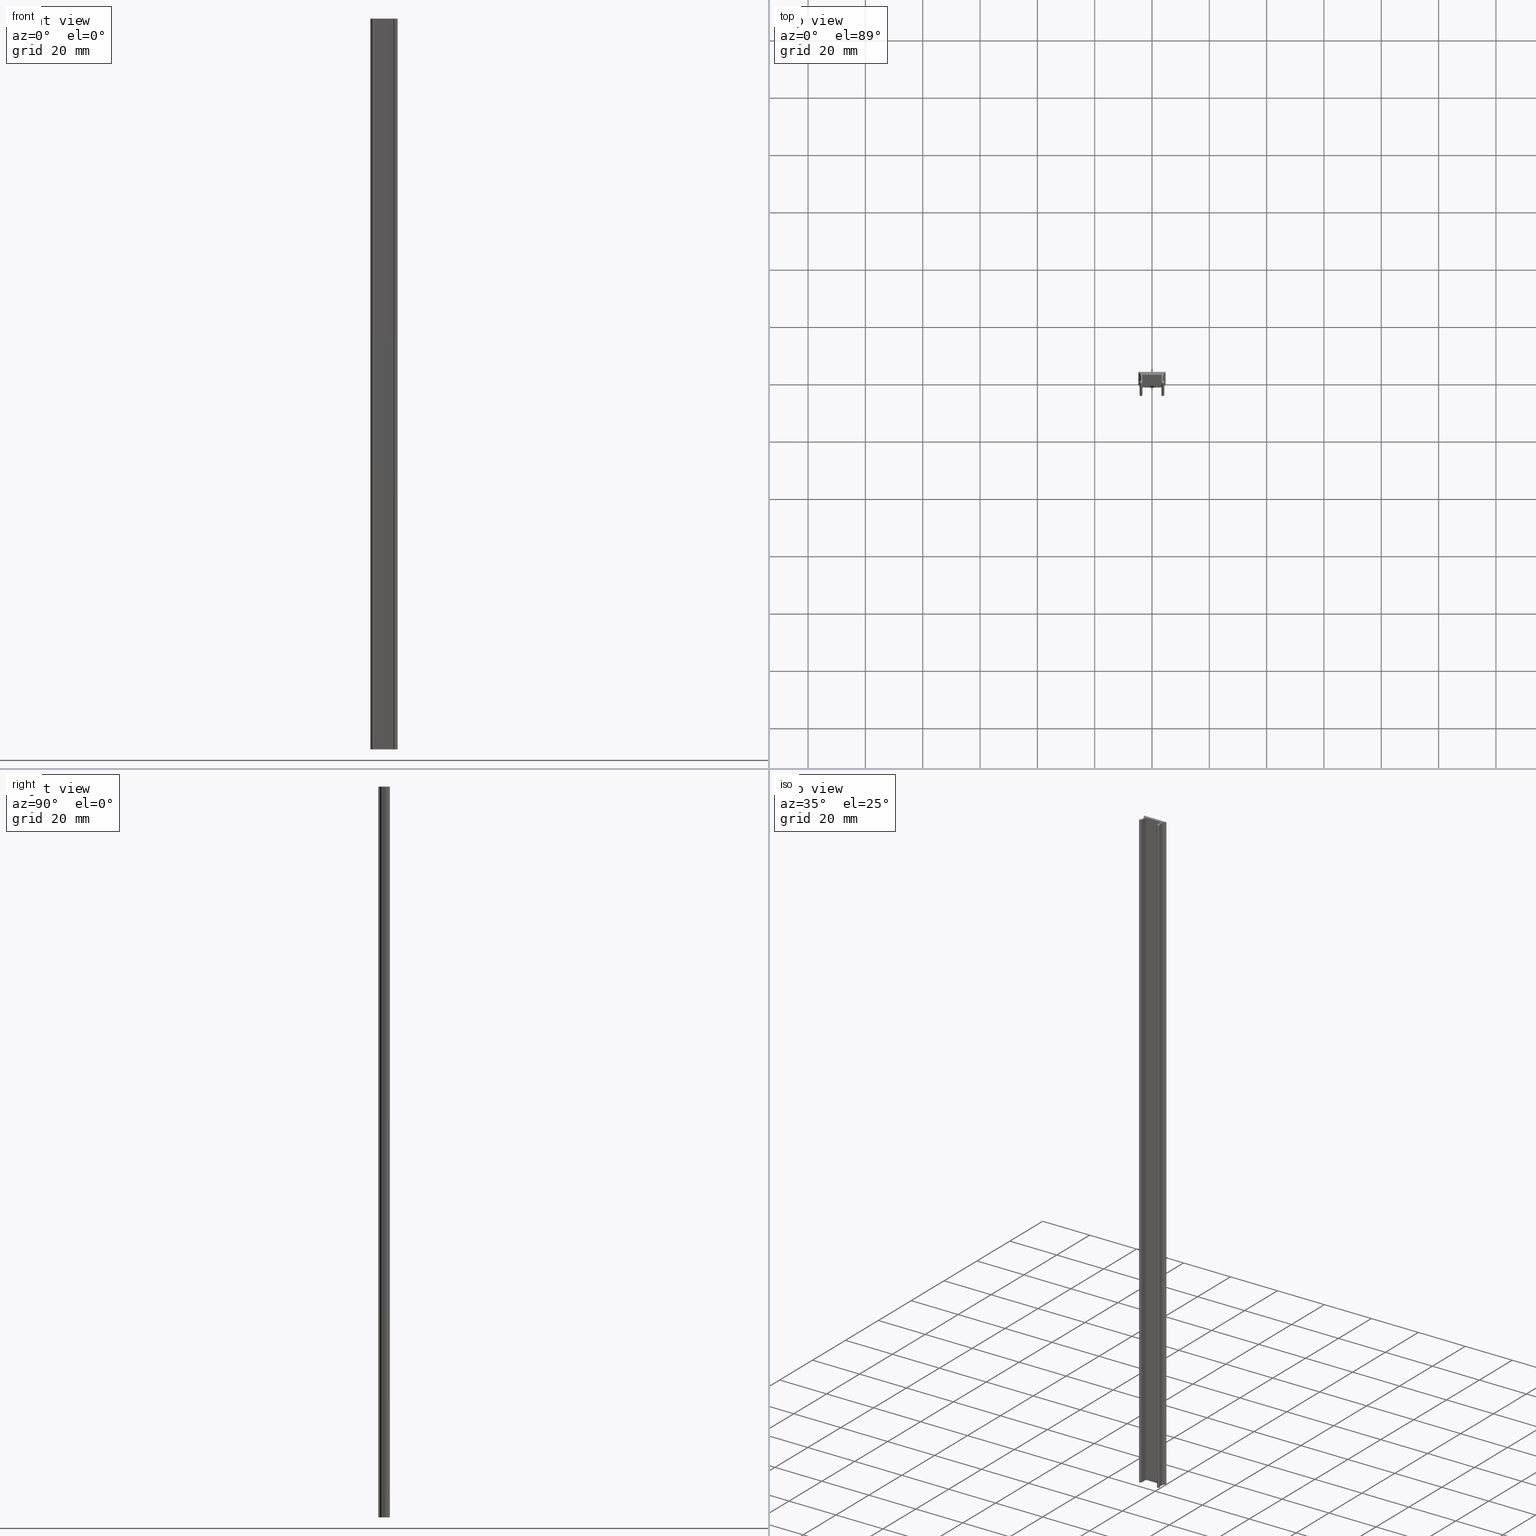
[diagram: canonical four-view strip — front | top / right | iso, engineering-drawing reading convention]
A machine part, canonical four-view strip (front | top / right | iso — engineering-drawing reading convention). The complete STEP part file that produces these views, byte-faithful:
ISO-10303-21;
HEADER;
/* Generated by software containing ST-Developer
 * from STEP Tools, Inc. (www.steptools.com) 
 */

FILE_DESCRIPTION(
/* description */ ('Translator using VaultInventorServer'),
/* implementation_level */ '2;1');

FILE_NAME(
/* name */ 
'C:\\DIERRE19\\Designs\\DIERRE\\AA\\PR\\0015000_0020000\\DAAPR0017599_
A.stp',
/* time_stamp */ '2022-03-18T14:28:15+01:00',
/* author */ ('Alex De Marchi'),
/* organization */ (''),
/* preprocessor_version */ 'ST-DEVELOPER v17.2',
/* originating_system */ 'Autodesk Inventor 2019',
/* authorisation */ '');

FILE_SCHEMA (('AUTOMOTIVE_DESIGN { 1 0 10303 214 3 1 1 }'));
ENDSEC;

DATA;
#10=MECHANICAL_DESIGN_GEOMETRIC_PRESENTATION_REPRESENTATION('',(#13),#535);
#11=SHAPE_REPRESENTATION_RELATIONSHIP('SRR','None',#542,#12);
#12=ADVANCED_BREP_SHAPE_REPRESENTATION('',(#14),#534);
#13=STYLED_ITEM('',(#551),#14);
#14=MANIFOLD_SOLID_BREP('Solido1',#301);
#15=CIRCLE('',#324,0.500000000027362);
#16=CIRCLE('',#325,0.500000000027362);
#17=CIRCLE('',#327,0.100000000248674);
#18=CIRCLE('',#328,0.100000000248674);
#19=CIRCLE('',#331,1.68999999973122);
#20=CIRCLE('',#332,1.68999999973122);
#21=CIRCLE('',#334,0.100000000248674);
#22=CIRCLE('',#335,0.100000000248674);
#23=CIRCLE('',#338,0.500000000027362);
#24=CIRCLE('',#339,0.500000000027362);
#25=CIRCLE('',#341,0.100000000248674);
#26=CIRCLE('',#342,0.100000000248674);
#27=CIRCLE('',#345,1.68999999973122);
#28=CIRCLE('',#346,1.68999999973122);
#29=CIRCLE('',#348,0.100000000248674);
#30=CIRCLE('',#349,0.100000000248674);
#31=CYLINDRICAL_SURFACE('',#323,0.500000000027362);
#32=CYLINDRICAL_SURFACE('',#326,0.100000000248674);
#33=CYLINDRICAL_SURFACE('',#330,1.68999999973122);
#34=CYLINDRICAL_SURFACE('',#333,0.100000000248674);
#35=CYLINDRICAL_SURFACE('',#337,0.500000000027362);
#36=CYLINDRICAL_SURFACE('',#340,0.100000000248674);
#37=CYLINDRICAL_SURFACE('',#344,1.68999999973122);
#38=CYLINDRICAL_SURFACE('',#347,0.100000000248674);
#39=FACE_OUTER_BOUND('',#55,.T.);
#40=FACE_OUTER_BOUND('',#56,.T.);
#41=FACE_OUTER_BOUND('',#57,.T.);
#42=FACE_OUTER_BOUND('',#58,.T.);
#43=FACE_OUTER_BOUND('',#59,.T.);
#44=FACE_OUTER_BOUND('',#60,.T.);
#45=FACE_OUTER_BOUND('',#61,.T.);
#46=FACE_OUTER_BOUND('',#62,.T.);
#47=FACE_OUTER_BOUND('',#63,.T.);
#48=FACE_OUTER_BOUND('',#64,.T.);
#49=FACE_OUTER_BOUND('',#65,.T.);
#50=FACE_OUTER_BOUND('',#66,.T.);
#51=FACE_OUTER_BOUND('',#67,.T.);
#52=FACE_OUTER_BOUND('',#68,.T.);
#53=FACE_OUTER_BOUND('',#69,.T.);
#54=FACE_OUTER_BOUND('',#70,.T.);
#55=EDGE_LOOP('',(#193,#194,#195,#196));
#56=EDGE_LOOP('',(#197,#198,#199,#200));
#57=EDGE_LOOP('',(#201,#202,#203,#204));
#58=EDGE_LOOP('',(#205,#206,#207,#208));
#59=EDGE_LOOP('',(#209,#210,#211,#212));
#60=EDGE_LOOP('',(#213,#214,#215,#216));
#61=EDGE_LOOP('',(#217,#218,#219,#220));
#62=EDGE_LOOP('',(#221,#222,#223,#224));
#63=EDGE_LOOP('',(#225,#226,#227,#228));
#64=EDGE_LOOP('',(#229,#230,#231,#232));
#65=EDGE_LOOP('',(#233,#234,#235,#236));
#66=EDGE_LOOP('',(#237,#238,#239,#240));
#67=EDGE_LOOP('',(#241,#242,#243,#244));
#68=EDGE_LOOP('',(#245,#246,#247,#248,#249,#250,#251,#252,#253,#254,#255,
#256,#257,#258));
#69=EDGE_LOOP('',(#259,#260,#261,#262));
#70=EDGE_LOOP('',(#263,#264,#265,#266,#267,#268,#269,#270,#271,#272,#273,
#274,#275,#276));
#71=LINE('',#449,#97);
#72=LINE('',#451,#98);
#73=LINE('',#453,#99);
#74=LINE('',#454,#100);
#75=LINE('',#457,#101);
#76=LINE('',#459,#102);
#77=LINE('',#460,#103);
#78=LINE('',#466,#104);
#79=LINE('',#472,#105);
#80=LINE('',#475,#106);
#81=LINE('',#477,#107);
#82=LINE('',#478,#108);
#83=LINE('',#484,#109);
#84=LINE('',#490,#110);
#85=LINE('',#493,#111);
#86=LINE('',#495,#112);
#87=LINE('',#496,#113);
#88=LINE('',#501,#114);
#89=LINE('',#507,#115);
#90=LINE('',#511,#116);
#91=LINE('',#513,#117);
#92=LINE('',#514,#118);
#93=LINE('',#519,#119);
#94=LINE('',#525,#120);
#95=LINE('',#528,#121);
#96=LINE('',#530,#122);
#97=VECTOR('',#357,10.);
#98=VECTOR('',#358,10.);
#99=VECTOR('',#359,10.);
#100=VECTOR('',#360,10.);
#101=VECTOR('',#363,10.);
#102=VECTOR('',#364,10.);
#103=VECTOR('',#365,10.);
#104=VECTOR('',#372,10.);
#105=VECTOR('',#379,10.);
#106=VECTOR('',#382,10.);
#107=VECTOR('',#383,10.);
#108=VECTOR('',#384,10.);
#109=VECTOR('',#391,10.);
#110=VECTOR('',#398,10.);
#111=VECTOR('',#401,10.);
#112=VECTOR('',#402,10.);
#113=VECTOR('',#403,10.);
#114=VECTOR('',#408,10.);
#115=VECTOR('',#415,10.);
#116=VECTOR('',#420,10.);
#117=VECTOR('',#421,10.);
#118=VECTOR('',#422,10.);
#119=VECTOR('',#427,10.);
#120=VECTOR('',#434,10.);
#121=VECTOR('',#439,10.);
#122=VECTOR('',#442,10.);
#123=VERTEX_POINT('',#447);
#124=VERTEX_POINT('',#448);
#125=VERTEX_POINT('',#450);
#126=VERTEX_POINT('',#452);
#127=VERTEX_POINT('',#456);
#128=VERTEX_POINT('',#458);
#129=VERTEX_POINT('',#462);
#130=VERTEX_POINT('',#464);
#131=VERTEX_POINT('',#468);
#132=VERTEX_POINT('',#470);
#133=VERTEX_POINT('',#474);
#134=VERTEX_POINT('',#476);
#135=VERTEX_POINT('',#480);
#136=VERTEX_POINT('',#482);
#137=VERTEX_POINT('',#486);
#138=VERTEX_POINT('',#488);
#139=VERTEX_POINT('',#492);
#140=VERTEX_POINT('',#494);
#141=VERTEX_POINT('',#498);
#142=VERTEX_POINT('',#500);
#143=VERTEX_POINT('',#504);
#144=VERTEX_POINT('',#506);
#145=VERTEX_POINT('',#510);
#146=VERTEX_POINT('',#512);
#147=VERTEX_POINT('',#516);
#148=VERTEX_POINT('',#518);
#149=VERTEX_POINT('',#522);
#150=VERTEX_POINT('',#524);
#151=EDGE_CURVE('',#123,#124,#71,.T.);
#152=EDGE_CURVE('',#125,#123,#72,.T.);
#153=EDGE_CURVE('',#126,#125,#73,.T.);
#154=EDGE_CURVE('',#126,#124,#74,.T.);
#155=EDGE_CURVE('',#124,#127,#75,.T.);
#156=EDGE_CURVE('',#128,#126,#76,.T.);
#157=EDGE_CURVE('',#128,#127,#77,.T.);
#158=EDGE_CURVE('',#127,#129,#15,.T.);
#159=EDGE_CURVE('',#130,#128,#16,.T.);
#160=EDGE_CURVE('',#130,#129,#78,.T.);
#161=EDGE_CURVE('',#129,#131,#17,.T.);
#162=EDGE_CURVE('',#132,#130,#18,.T.);
#163=EDGE_CURVE('',#132,#131,#79,.T.);
#164=EDGE_CURVE('',#131,#133,#80,.T.);
#165=EDGE_CURVE('',#134,#132,#81,.T.);
#166=EDGE_CURVE('',#134,#133,#82,.T.);
#167=EDGE_CURVE('',#133,#135,#19,.T.);
#168=EDGE_CURVE('',#136,#134,#20,.T.);
#169=EDGE_CURVE('',#136,#135,#83,.T.);
#170=EDGE_CURVE('',#135,#137,#21,.T.);
#171=EDGE_CURVE('',#138,#136,#22,.T.);
#172=EDGE_CURVE('',#137,#138,#84,.T.);
#173=EDGE_CURVE('',#139,#123,#85,.T.);
#174=EDGE_CURVE('',#140,#139,#86,.T.);
#175=EDGE_CURVE('',#125,#140,#87,.T.);
#176=EDGE_CURVE('',#141,#139,#23,.T.);
#177=EDGE_CURVE('',#142,#141,#88,.T.);
#178=EDGE_CURVE('',#140,#142,#24,.T.);
#179=EDGE_CURVE('',#143,#141,#25,.T.);
#180=EDGE_CURVE('',#144,#143,#89,.T.);
#181=EDGE_CURVE('',#142,#144,#26,.T.);
#182=EDGE_CURVE('',#145,#143,#90,.T.);
#183=EDGE_CURVE('',#146,#145,#91,.T.);
#184=EDGE_CURVE('',#144,#146,#92,.T.);
#185=EDGE_CURVE('',#147,#145,#27,.T.);
#186=EDGE_CURVE('',#148,#147,#93,.T.);
#187=EDGE_CURVE('',#146,#148,#28,.T.);
#188=EDGE_CURVE('',#149,#147,#29,.T.);
#189=EDGE_CURVE('',#149,#150,#94,.T.);
#190=EDGE_CURVE('',#148,#150,#30,.T.);
#191=EDGE_CURVE('',#150,#138,#95,.T.);
#192=EDGE_CURVE('',#149,#137,#96,.T.);
#193=ORIENTED_EDGE('',*,*,#151,.F.);
#194=ORIENTED_EDGE('',*,*,#152,.F.);
#195=ORIENTED_EDGE('',*,*,#153,.F.);
#196=ORIENTED_EDGE('',*,*,#154,.T.);
#197=ORIENTED_EDGE('',*,*,#155,.F.);
#198=ORIENTED_EDGE('',*,*,#154,.F.);
#199=ORIENTED_EDGE('',*,*,#156,.F.);
#200=ORIENTED_EDGE('',*,*,#157,.T.);
#201=ORIENTED_EDGE('',*,*,#158,.F.);
#202=ORIENTED_EDGE('',*,*,#157,.F.);
#203=ORIENTED_EDGE('',*,*,#159,.F.);
#204=ORIENTED_EDGE('',*,*,#160,.T.);
#205=ORIENTED_EDGE('',*,*,#161,.F.);
#206=ORIENTED_EDGE('',*,*,#160,.F.);
#207=ORIENTED_EDGE('',*,*,#162,.F.);
#208=ORIENTED_EDGE('',*,*,#163,.T.);
#209=ORIENTED_EDGE('',*,*,#164,.F.);
#210=ORIENTED_EDGE('',*,*,#163,.F.);
#211=ORIENTED_EDGE('',*,*,#165,.F.);
#212=ORIENTED_EDGE('',*,*,#166,.T.);
#213=ORIENTED_EDGE('',*,*,#167,.F.);
#214=ORIENTED_EDGE('',*,*,#166,.F.);
#215=ORIENTED_EDGE('',*,*,#168,.F.);
#216=ORIENTED_EDGE('',*,*,#169,.T.);
#217=ORIENTED_EDGE('',*,*,#170,.F.);
#218=ORIENTED_EDGE('',*,*,#169,.F.);
#219=ORIENTED_EDGE('',*,*,#171,.F.);
#220=ORIENTED_EDGE('',*,*,#172,.F.);
#221=ORIENTED_EDGE('',*,*,#173,.F.);
#222=ORIENTED_EDGE('',*,*,#174,.F.);
#223=ORIENTED_EDGE('',*,*,#175,.F.);
#224=ORIENTED_EDGE('',*,*,#152,.T.);
#225=ORIENTED_EDGE('',*,*,#176,.F.);
#226=ORIENTED_EDGE('',*,*,#177,.F.);
#227=ORIENTED_EDGE('',*,*,#178,.F.);
#228=ORIENTED_EDGE('',*,*,#174,.T.);
#229=ORIENTED_EDGE('',*,*,#179,.F.);
#230=ORIENTED_EDGE('',*,*,#180,.F.);
#231=ORIENTED_EDGE('',*,*,#181,.F.);
#232=ORIENTED_EDGE('',*,*,#177,.T.);
#233=ORIENTED_EDGE('',*,*,#182,.F.);
#234=ORIENTED_EDGE('',*,*,#183,.F.);
#235=ORIENTED_EDGE('',*,*,#184,.F.);
#236=ORIENTED_EDGE('',*,*,#180,.T.);
#237=ORIENTED_EDGE('',*,*,#185,.F.);
#238=ORIENTED_EDGE('',*,*,#186,.F.);
#239=ORIENTED_EDGE('',*,*,#187,.F.);
#240=ORIENTED_EDGE('',*,*,#183,.T.);
#241=ORIENTED_EDGE('',*,*,#188,.F.);
#242=ORIENTED_EDGE('',*,*,#189,.T.);
#243=ORIENTED_EDGE('',*,*,#190,.F.);
#244=ORIENTED_EDGE('',*,*,#186,.T.);
#245=ORIENTED_EDGE('',*,*,#171,.T.);
#246=ORIENTED_EDGE('',*,*,#168,.T.);
#247=ORIENTED_EDGE('',*,*,#165,.T.);
#248=ORIENTED_EDGE('',*,*,#162,.T.);
#249=ORIENTED_EDGE('',*,*,#159,.T.);
#250=ORIENTED_EDGE('',*,*,#156,.T.);
#251=ORIENTED_EDGE('',*,*,#153,.T.);
#252=ORIENTED_EDGE('',*,*,#175,.T.);
#253=ORIENTED_EDGE('',*,*,#178,.T.);
#254=ORIENTED_EDGE('',*,*,#181,.T.);
#255=ORIENTED_EDGE('',*,*,#184,.T.);
#256=ORIENTED_EDGE('',*,*,#187,.T.);
#257=ORIENTED_EDGE('',*,*,#190,.T.);
#258=ORIENTED_EDGE('',*,*,#191,.T.);
#259=ORIENTED_EDGE('',*,*,#172,.T.);
#260=ORIENTED_EDGE('',*,*,#191,.F.);
#261=ORIENTED_EDGE('',*,*,#189,.F.);
#262=ORIENTED_EDGE('',*,*,#192,.T.);
#263=ORIENTED_EDGE('',*,*,#170,.T.);
#264=ORIENTED_EDGE('',*,*,#192,.F.);
#265=ORIENTED_EDGE('',*,*,#188,.T.);
#266=ORIENTED_EDGE('',*,*,#185,.T.);
#267=ORIENTED_EDGE('',*,*,#182,.T.);
#268=ORIENTED_EDGE('',*,*,#179,.T.);
#269=ORIENTED_EDGE('',*,*,#176,.T.);
#270=ORIENTED_EDGE('',*,*,#173,.T.);
#271=ORIENTED_EDGE('',*,*,#151,.T.);
#272=ORIENTED_EDGE('',*,*,#155,.T.);
#273=ORIENTED_EDGE('',*,*,#158,.T.);
#274=ORIENTED_EDGE('',*,*,#161,.T.);
#275=ORIENTED_EDGE('',*,*,#164,.T.);
#276=ORIENTED_EDGE('',*,*,#167,.T.);
#277=PLANE('',#321);
#278=PLANE('',#322);
#279=PLANE('',#329);
#280=PLANE('',#336);
#281=PLANE('',#343);
#282=PLANE('',#350);
#283=PLANE('',#351);
#284=PLANE('',#352);
#285=ADVANCED_FACE('',(#39),#277,.T.);
#286=ADVANCED_FACE('',(#40),#278,.T.);
#287=ADVANCED_FACE('',(#41),#31,.T.);
#288=ADVANCED_FACE('',(#42),#32,.F.);
#289=ADVANCED_FACE('',(#43),#279,.T.);
#290=ADVANCED_FACE('',(#44),#33,.F.);
#291=ADVANCED_FACE('',(#45),#34,.T.);
#292=ADVANCED_FACE('',(#46),#280,.T.);
#293=ADVANCED_FACE('',(#47),#35,.T.);
#294=ADVANCED_FACE('',(#48),#36,.F.);
#295=ADVANCED_FACE('',(#49),#281,.T.);
#296=ADVANCED_FACE('',(#50),#37,.F.);
#297=ADVANCED_FACE('',(#51),#38,.T.);
#298=ADVANCED_FACE('',(#52),#282,.F.);
#299=ADVANCED_FACE('',(#53),#283,.T.);
#300=ADVANCED_FACE('',(#54),#284,.T.);
#301=CLOSED_SHELL('',(#285,#286,#287,#288,#289,#290,#291,#292,#293,#294,
#295,#296,#297,#298,#299,#300));
#302=DERIVED_UNIT_ELEMENT(#304,1.);
#303=DERIVED_UNIT_ELEMENT(#537,3.);
#304=(
MASS_UNIT()
NAMED_UNIT(*)
SI_UNIT($,.GRAM.)
);
#305=DERIVED_UNIT((#302,#303));
#306=MEASURE_REPRESENTATION_ITEM('density measure',
POSITIVE_RATIO_MEASURE(2.7),#305);
#307=PROPERTY_DEFINITION_REPRESENTATION(#312,#309);
#308=PROPERTY_DEFINITION_REPRESENTATION(#313,#310);
#309=REPRESENTATION('material name',(#311),#534);
#310=REPRESENTATION('density',(#306),#534);
#311=DESCRIPTIVE_REPRESENTATION_ITEM('Alluminio - 6060',
'Alluminio - 6060');
#312=PROPERTY_DEFINITION('material property','material name',#544);
#313=PROPERTY_DEFINITION('material property','density of part',#544);
#314=DATE_TIME_ROLE('creation_date');
#315=APPLIED_DATE_AND_TIME_ASSIGNMENT(#316,#314,(#544));
#316=DATE_AND_TIME(#317,#318);
#317=CALENDAR_DATE(2015,15,10);
#318=LOCAL_TIME(10,5,35.,#319);
#319=COORDINATED_UNIVERSAL_TIME_OFFSET(0,0,.BEHIND.);
#320=AXIS2_PLACEMENT_3D('placement',#445,#353,#354);
#321=AXIS2_PLACEMENT_3D('',#446,#355,#356);
#322=AXIS2_PLACEMENT_3D('',#455,#361,#362);
#323=AXIS2_PLACEMENT_3D('',#461,#366,#367);
#324=AXIS2_PLACEMENT_3D('',#463,#368,#369);
#325=AXIS2_PLACEMENT_3D('',#465,#370,#371);
#326=AXIS2_PLACEMENT_3D('',#467,#373,#374);
#327=AXIS2_PLACEMENT_3D('',#469,#375,#376);
#328=AXIS2_PLACEMENT_3D('',#471,#377,#378);
#329=AXIS2_PLACEMENT_3D('',#473,#380,#381);
#330=AXIS2_PLACEMENT_3D('',#479,#385,#386);
#331=AXIS2_PLACEMENT_3D('',#481,#387,#388);
#332=AXIS2_PLACEMENT_3D('',#483,#389,#390);
#333=AXIS2_PLACEMENT_3D('',#485,#392,#393);
#334=AXIS2_PLACEMENT_3D('',#487,#394,#395);
#335=AXIS2_PLACEMENT_3D('',#489,#396,#397);
#336=AXIS2_PLACEMENT_3D('',#491,#399,#400);
#337=AXIS2_PLACEMENT_3D('',#497,#404,#405);
#338=AXIS2_PLACEMENT_3D('',#499,#406,#407);
#339=AXIS2_PLACEMENT_3D('',#502,#409,#410);
#340=AXIS2_PLACEMENT_3D('',#503,#411,#412);
#341=AXIS2_PLACEMENT_3D('',#505,#413,#414);
#342=AXIS2_PLACEMENT_3D('',#508,#416,#417);
#343=AXIS2_PLACEMENT_3D('',#509,#418,#419);
#344=AXIS2_PLACEMENT_3D('',#515,#423,#424);
#345=AXIS2_PLACEMENT_3D('',#517,#425,#426);
#346=AXIS2_PLACEMENT_3D('',#520,#428,#429);
#347=AXIS2_PLACEMENT_3D('',#521,#430,#431);
#348=AXIS2_PLACEMENT_3D('',#523,#432,#433);
#349=AXIS2_PLACEMENT_3D('',#526,#435,#436);
#350=AXIS2_PLACEMENT_3D('',#527,#437,#438);
#351=AXIS2_PLACEMENT_3D('',#529,#440,#441);
#352=AXIS2_PLACEMENT_3D('',#531,#443,#444);
#353=DIRECTION('axis',(0.,0.,1.));
#354=DIRECTION('refdir',(1.,0.,0.));
#355=DIRECTION('center_axis',(0.,-1.,0.));
#356=DIRECTION('ref_axis',(0.,0.,-1.));
#357=DIRECTION('',(1.,0.,0.));
#358=DIRECTION('',(0.,0.,1.));
#359=DIRECTION('',(-1.,0.,0.));
#360=DIRECTION('',(0.,0.,1.));
#361=DIRECTION('center_axis',(-1.,0.,0.));
#362=DIRECTION('ref_axis',(0.,0.,1.));
#363=DIRECTION('',(0.,-1.,0.));
#364=DIRECTION('',(0.,1.,0.));
#365=DIRECTION('',(0.,0.,1.));
#366=DIRECTION('center_axis',(0.,0.,1.));
#367=DIRECTION('ref_axis',(0.645497224267798,-0.763762615910578,0.));
#368=DIRECTION('center_axis',(0.,0.,1.));
#369=DIRECTION('ref_axis',(-1.,4.44089209825763E-15,0.));
#370=DIRECTION('center_axis',(0.,0.,-1.));
#371=DIRECTION('ref_axis',(-1.,4.44089209825763E-15,0.));
#372=DIRECTION('',(0.,0.,1.));
#373=DIRECTION('center_axis',(0.,0.,1.));
#374=DIRECTION('ref_axis',(1.,0.,0.));
#375=DIRECTION('center_axis',(0.,0.,-1.));
#376=DIRECTION('ref_axis',(1.,0.,0.));
#377=DIRECTION('center_axis',(0.,0.,1.));
#378=DIRECTION('ref_axis',(1.,0.,0.));
#379=DIRECTION('',(0.,0.,1.));
#380=DIRECTION('center_axis',(1.,0.,0.));
#381=DIRECTION('ref_axis',(0.,0.,-1.));
#382=DIRECTION('',(0.,1.,0.));
#383=DIRECTION('',(0.,-1.,0.));
#384=DIRECTION('',(0.,0.,1.));
#385=DIRECTION('center_axis',(0.,0.,1.));
#386=DIRECTION('ref_axis',(0.459325247268127,-0.888268156145471,0.));
#387=DIRECTION('center_axis',(0.,0.,-1.));
#388=DIRECTION('ref_axis',(0.459325247268127,-0.888268156145471,0.));
#389=DIRECTION('center_axis',(0.,0.,1.));
#390=DIRECTION('ref_axis',(0.459325247268127,-0.888268156145471,0.));
#391=DIRECTION('',(0.,0.,1.));
#392=DIRECTION('center_axis',(0.,0.,1.));
#393=DIRECTION('ref_axis',(0.459325247268123,-0.888268156145473,0.));
#394=DIRECTION('center_axis',(0.,0.,1.));
#395=DIRECTION('ref_axis',(0.459325247268123,-0.888268156145473,0.));
#396=DIRECTION('center_axis',(0.,0.,-1.));
#397=DIRECTION('ref_axis',(0.459325247268123,-0.888268156145473,0.));
#398=DIRECTION('',(0.,0.,-1.));
#399=DIRECTION('center_axis',(1.,0.,0.));
#400=DIRECTION('ref_axis',(0.,0.,-1.));
#401=DIRECTION('',(0.,1.,0.));
#402=DIRECTION('',(0.,0.,1.));
#403=DIRECTION('',(0.,-1.,0.));
#404=DIRECTION('center_axis',(0.,0.,1.));
#405=DIRECTION('ref_axis',(-0.645497224267796,-0.763762615910579,0.));
#406=DIRECTION('center_axis',(0.,0.,1.));
#407=DIRECTION('ref_axis',(-0.166666666925146,0.986013297139579,0.));
#408=DIRECTION('',(0.,0.,1.));
#409=DIRECTION('center_axis',(0.,0.,-1.));
#410=DIRECTION('ref_axis',(-0.166666666925146,0.986013297139579,0.));
#411=DIRECTION('center_axis',(0.,0.,1.));
#412=DIRECTION('ref_axis',(-0.166666666925153,0.986013297139577,0.));
#413=DIRECTION('center_axis',(0.,0.,-1.));
#414=DIRECTION('ref_axis',(-0.166666666925153,0.986013297139577,0.));
#415=DIRECTION('',(0.,0.,1.));
#416=DIRECTION('center_axis',(0.,0.,1.));
#417=DIRECTION('ref_axis',(-0.166666666925153,0.986013297139577,0.));
#418=DIRECTION('center_axis',(-1.,0.,0.));
#419=DIRECTION('ref_axis',(0.,0.,1.));
#420=DIRECTION('',(0.,-1.,0.));
#421=DIRECTION('',(0.,0.,1.));
#422=DIRECTION('',(0.,1.,0.));
#423=DIRECTION('center_axis',(0.,0.,1.));
#424=DIRECTION('ref_axis',(-1.,0.,0.));
#425=DIRECTION('center_axis',(0.,0.,-1.));
#426=DIRECTION('ref_axis',(-1.,0.,0.));
#427=DIRECTION('',(0.,0.,1.));
#428=DIRECTION('center_axis',(0.,0.,1.));
#429=DIRECTION('ref_axis',(-1.,0.,0.));
#430=DIRECTION('center_axis',(0.,0.,1.));
#431=DIRECTION('ref_axis',(5.55111510932133E-15,1.,0.));
#432=DIRECTION('center_axis',(0.,0.,1.));
#433=DIRECTION('ref_axis',(5.55111510932133E-15,1.,0.));
#434=DIRECTION('',(0.,0.,-1.));
#435=DIRECTION('center_axis',(0.,0.,-1.));
#436=DIRECTION('ref_axis',(5.55111510932133E-15,1.,0.));
#437=DIRECTION('center_axis',(0.,0.,1.));
#438=DIRECTION('ref_axis',(1.,0.,0.));
#439=DIRECTION('',(1.,4.28626379701574E-16,0.));
#440=DIRECTION('center_axis',(-4.28626379701574E-16,1.,0.));
#441=DIRECTION('ref_axis',(-1.,-4.28626379701574E-16,0.));
#442=DIRECTION('',(1.,4.28626379701574E-16,0.));
#443=DIRECTION('center_axis',(0.,0.,1.));
#444=DIRECTION('ref_axis',(1.,0.,0.));
#445=CARTESIAN_POINT('',(0.,0.,0.));
#446=CARTESIAN_POINT('Origin',(3.30000000000877,-0.999999999561894,0.));
#447=CARTESIAN_POINT('',(-3.30000000000876,-0.999999999561894,255.));
#448=CARTESIAN_POINT('',(3.30000000000877,-0.999999999561894,255.));
#449=CARTESIAN_POINT('',(1.65000000000439,-0.999999999561894,255.));
#450=CARTESIAN_POINT('',(-3.30000000000876,-0.999999999561894,0.));
#451=CARTESIAN_POINT('',(-3.30000000000876,-0.999999999561894,0.));
#452=CARTESIAN_POINT('',(3.30000000000877,-0.999999999561894,0.));
#453=CARTESIAN_POINT('',(1.65000000000439,-0.999999999561894,0.));
#454=CARTESIAN_POINT('',(3.30000000000877,-0.999999999561894,0.));
#455=CARTESIAN_POINT('Origin',(3.30000000000877,-3.49999999997263,0.));
#456=CARTESIAN_POINT('',(3.30000000000877,-3.49999999997263,255.));
#457=CARTESIAN_POINT('',(3.30000000000877,-2.99999999998631,255.));
#458=CARTESIAN_POINT('',(3.30000000000877,-3.49999999997263,0.));
#459=CARTESIAN_POINT('',(3.30000000000877,-2.99999999998631,0.));
#460=CARTESIAN_POINT('',(3.30000000000877,-3.49999999997263,0.));
#461=CARTESIAN_POINT('Origin',(3.80000000003613,-3.49999999997263,0.));
#462=CARTESIAN_POINT('',(3.88333333350326,-3.00699335137586,255.));
#463=CARTESIAN_POINT('Origin',(3.80000000003613,-3.49999999997263,255.));
#464=CARTESIAN_POINT('',(3.88333333350326,-3.00699335137586,0.));
#465=CARTESIAN_POINT('Origin',(3.80000000003613,-3.49999999997263,0.));
#466=CARTESIAN_POINT('',(3.88333333350326,-3.00699335137586,0.));
#467=CARTESIAN_POINT('Origin',(3.90000000023722,-2.90839202141671,0.));
#468=CARTESIAN_POINT('',(3.79999999998854,-2.90839202141671,255.));
#469=CARTESIAN_POINT('Origin',(3.90000000023722,-2.90839202141671,255.));
#470=CARTESIAN_POINT('',(3.79999999998854,-2.90839202141671,0.));
#471=CARTESIAN_POINT('Origin',(3.90000000023722,-2.90839202141671,0.));
#472=CARTESIAN_POINT('',(3.79999999998854,-2.90839202141671,0.));
#473=CARTESIAN_POINT('Origin',(3.79999999998854,-1.68999999973122,0.));
#474=CARTESIAN_POINT('',(3.79999999998854,-1.68999999973122,255.));
#475=CARTESIAN_POINT('',(3.79999999998854,-2.09499999986561,255.));
#476=CARTESIAN_POINT('',(3.79999999998854,-1.68999999973122,0.));
#477=CARTESIAN_POINT('',(3.79999999998854,-2.09499999986561,0.));
#478=CARTESIAN_POINT('',(3.79999999998854,-1.68999999973122,0.));
#479=CARTESIAN_POINT('Origin',(5.48999999971976,-1.68999999973122,0.));
#480=CARTESIAN_POINT('',(4.71374033196008,-0.18882681608412,255.));
#481=CARTESIAN_POINT('Origin',(5.48999999971976,-1.68999999973122,255.));
#482=CARTESIAN_POINT('',(4.71374033196008,-0.18882681608412,0.));
#483=CARTESIAN_POINT('Origin',(5.48999999971976,-1.68999999973122,0.));
#484=CARTESIAN_POINT('',(4.71374033196008,-0.18882681608412,0.));
#485=CARTESIAN_POINT('Origin',(4.66780780711905,-0.100000000248679,0.));
#486=CARTESIAN_POINT('',(4.66780780711905,0.,255.));
#487=CARTESIAN_POINT('Origin',(4.66780780711905,-0.100000000248679,255.));
#488=CARTESIAN_POINT('',(4.66780780711905,0.,0.));
#489=CARTESIAN_POINT('Origin',(4.66780780711905,-0.100000000248679,0.));
#490=CARTESIAN_POINT('',(4.66780780711905,2.91433543964104E-15,0.));
#491=CARTESIAN_POINT('Origin',(-3.30000000000876,-0.999999999561894,0.));
#492=CARTESIAN_POINT('',(-3.30000000000876,-3.49999999997263,255.));
#493=CARTESIAN_POINT('',(-3.30000000000876,-1.74999999978095,255.));
#494=CARTESIAN_POINT('',(-3.30000000000876,-3.49999999997263,0.));
#495=CARTESIAN_POINT('',(-3.30000000000876,-3.49999999997263,0.));
#496=CARTESIAN_POINT('',(-3.30000000000876,-1.74999999978095,0.));
#497=CARTESIAN_POINT('Origin',(-3.80000000003612,-3.49999999997263,0.));
#498=CARTESIAN_POINT('',(-3.88333333350326,-3.00699335137586,255.));
#499=CARTESIAN_POINT('Origin',(-3.80000000003612,-3.49999999997263,255.));
#500=CARTESIAN_POINT('',(-3.88333333350326,-3.00699335137586,0.));
#501=CARTESIAN_POINT('',(-3.88333333350326,-3.00699335137586,0.));
#502=CARTESIAN_POINT('Origin',(-3.80000000003612,-3.49999999997263,0.));
#503=CARTESIAN_POINT('Origin',(-3.90000000023722,-2.90839202141671,0.));
#504=CARTESIAN_POINT('',(-3.79999999998854,-2.90839202141671,255.));
#505=CARTESIAN_POINT('Origin',(-3.90000000023722,-2.90839202141671,255.));
#506=CARTESIAN_POINT('',(-3.79999999998854,-2.90839202141671,0.));
#507=CARTESIAN_POINT('',(-3.79999999998854,-2.90839202141671,0.));
#508=CARTESIAN_POINT('Origin',(-3.90000000023722,-2.90839202141671,0.));
#509=CARTESIAN_POINT('Origin',(-3.79999999998854,-2.90839202141671,0.));
#510=CARTESIAN_POINT('',(-3.79999999998854,-1.68999999973122,255.));
#511=CARTESIAN_POINT('',(-3.79999999998854,-2.70419601070835,255.));
#512=CARTESIAN_POINT('',(-3.79999999998854,-1.68999999973122,0.));
#513=CARTESIAN_POINT('',(-3.79999999998854,-1.68999999973122,0.));
#514=CARTESIAN_POINT('',(-3.79999999998854,-2.70419601070835,0.));
#515=CARTESIAN_POINT('Origin',(-5.48999999971976,-1.68999999973122,0.));
#516=CARTESIAN_POINT('',(-4.71374033196008,-0.18882681608412,255.));
#517=CARTESIAN_POINT('Origin',(-5.48999999971976,-1.68999999973122,255.));
#518=CARTESIAN_POINT('',(-4.71374033196008,-0.18882681608412,0.));
#519=CARTESIAN_POINT('',(-4.71374033196008,-0.18882681608412,0.));
#520=CARTESIAN_POINT('Origin',(-5.48999999971976,-1.68999999973122,0.));
#521=CARTESIAN_POINT('Origin',(-4.66780780711905,-0.100000000248679,0.));
#522=CARTESIAN_POINT('',(-4.66780780711905,0.,255.));
#523=CARTESIAN_POINT('Origin',(-4.66780780711905,-0.100000000248679,255.));
#524=CARTESIAN_POINT('',(-4.66780780711905,0.,0.));
#525=CARTESIAN_POINT('',(-4.66780780711905,-1.07552855510562E-15,0.));
#526=CARTESIAN_POINT('Origin',(-4.66780780711905,-0.100000000248679,0.));
#527=CARTESIAN_POINT('Origin',(1.94289029309402E-15,-2.5,0.));
#528=CARTESIAN_POINT('',(2.5,2.08166817117217E-15,0.));
#529=CARTESIAN_POINT('Origin',(5.,3.06161699786838E-15,0.));
#530=CARTESIAN_POINT('',(2.5,2.08166817117217E-15,255.));
#531=CARTESIAN_POINT('Origin',(1.94289029309402E-15,-2.5,255.));
#532=UNCERTAINTY_MEASURE_WITH_UNIT(LENGTH_MEASURE(0.01),#536,
'DISTANCE_ACCURACY_VALUE',
'Maximum model space distance between geometric entities at asserted c
onnectivities');
#533=UNCERTAINTY_MEASURE_WITH_UNIT(LENGTH_MEASURE(0.01),#536,
'DISTANCE_ACCURACY_VALUE',
'Maximum model space distance between geometric entities at asserted c
onnectivities');
#534=(
GEOMETRIC_REPRESENTATION_CONTEXT(3)
GLOBAL_UNCERTAINTY_ASSIGNED_CONTEXT((#532))
GLOBAL_UNIT_ASSIGNED_CONTEXT((#536,#538,#539))
REPRESENTATION_CONTEXT('','3D')
);
#535=(
GEOMETRIC_REPRESENTATION_CONTEXT(3)
GLOBAL_UNCERTAINTY_ASSIGNED_CONTEXT((#533))
GLOBAL_UNIT_ASSIGNED_CONTEXT((#536,#538,#539))
REPRESENTATION_CONTEXT('','3D')
);
#536=(
LENGTH_UNIT()
NAMED_UNIT(*)
SI_UNIT(.MILLI.,.METRE.)
);
#537=(
LENGTH_UNIT()
NAMED_UNIT(*)
SI_UNIT(.CENTI.,.METRE.)
);
#538=(
NAMED_UNIT(*)
PLANE_ANGLE_UNIT()
SI_UNIT($,.RADIAN.)
);
#539=(
NAMED_UNIT(*)
SI_UNIT($,.STERADIAN.)
SOLID_ANGLE_UNIT()
);
#540=SHAPE_DEFINITION_REPRESENTATION(#541,#542);
#541=PRODUCT_DEFINITION_SHAPE('',$,#544);
#542=SHAPE_REPRESENTATION('',(#320),#534);
#543=PRODUCT_DEFINITION_CONTEXT('part definition',#548,'design');
#544=PRODUCT_DEFINITION('iPart 21.060.00A-21.060.00A-255',
'DAAPR0017599',#545,#543);
#545=PRODUCT_DEFINITION_FORMATION('A',$,#550);
#546=PRODUCT_RELATED_PRODUCT_CATEGORY('DAAPR0017599','DAAPR0017599',(#550));
#547=APPLICATION_PROTOCOL_DEFINITION('international standard',
'automotive_design',2009,#548);
#548=APPLICATION_CONTEXT(
'Core Data for Automotive Mechanical Design Process');
#549=PRODUCT_CONTEXT('part definition',#548,'mechanical');
#550=PRODUCT('iPart 21.060.00A-21.060.00A-255','DAAPR0017599',
'PROFILO X PROTEZIONI ',(#549));
#551=PRESENTATION_STYLE_ASSIGNMENT((#552));
#552=SURFACE_STYLE_USAGE(.BOTH.,#555);
#553=SURFACE_STYLE_RENDERING_WITH_PROPERTIES($,#559,(#554));
#554=SURFACE_STYLE_TRANSPARENT(1.);
#555=SURFACE_SIDE_STYLE('',(#556,#553));
#556=SURFACE_STYLE_FILL_AREA(#557);
#557=FILL_AREA_STYLE('',(#558));
#558=FILL_AREA_STYLE_COLOUR('',#559);
#559=COLOUR_RGB('',0.956862745098039,0.956862745098039,0.956862745098039);
ENDSEC;
END-ISO-10303-21;
